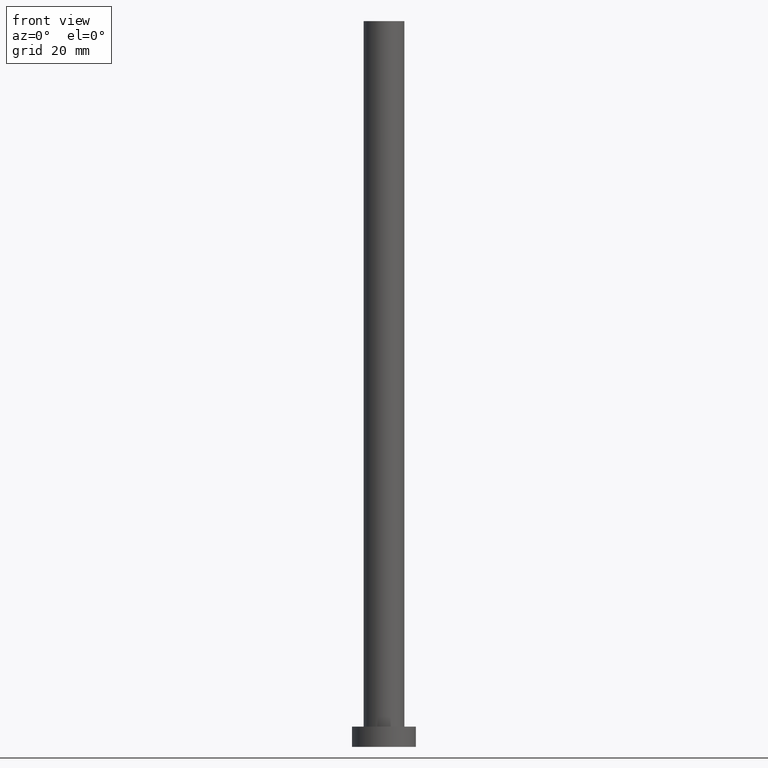
[diagram: clean part render]
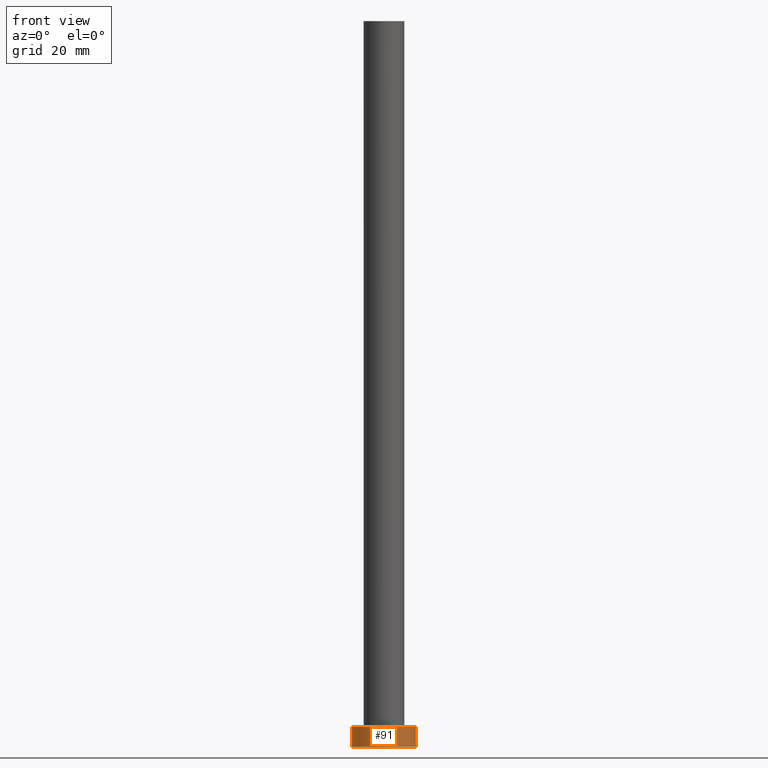
[diagram: same view with one face highlighted and labeled with its STEP entity id]
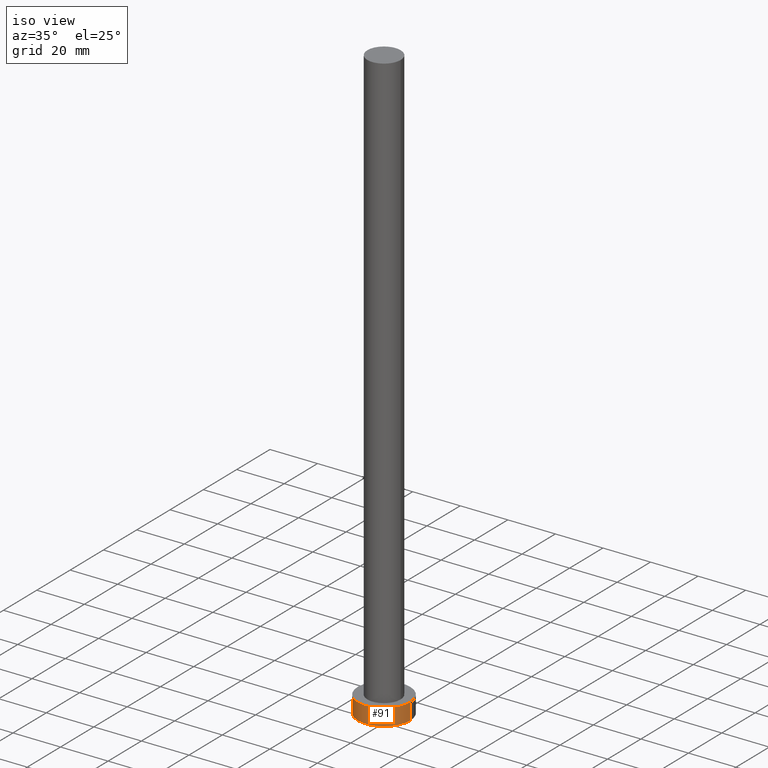
[diagram: same view with one face highlighted and labeled with its STEP entity id]
A machine part, front view. The second image highlights one B-rep face of the part: STEP entity #91.
A second angle (iso view) of the same face is appended — the face is thin or edge-on in the first view.
In plain terms, the highlighted cylindrical surface (edge-blend (fillet) strip) has radius 11 mm, axis along (-0, -0, -1).
Its self-contained STEP definition (entity closure, byte-faithful):
#3 = CARTESIAN_POINT ( 'NONE',  ( 0.000000000000000000, 0.000000000000000000, 0.000000000000000000 ) ) ;
#26 = CIRCLE ( 'NONE', #181, 11.00000000000000000 ) ;
#27 = CARTESIAN_POINT ( 'NONE',  ( 11.00000000000000000, 1.347111479062088405E-15, 0.000000000000000000 ) ) ;
#29 = VERTEX_POINT ( 'NONE', #150 ) ;
#31 = VERTEX_POINT ( 'NONE', #62 ) ;
#38 = DIRECTION ( 'NONE',  ( -0.000000000000000000, -0.000000000000000000, -1.000000000000000000 ) ) ;
#42 = DIRECTION ( 'NONE',  ( 0.000000000000000000, 0.000000000000000000, 1.000000000000000000 ) ) ;
#51 = CARTESIAN_POINT ( 'NONE',  ( 0.000000000000000000, 0.000000000000000000, 7.000000000000000000 ) ) ;
#54 = ORIENTED_EDGE ( 'NONE', *, *, #126, .T. ) ;
#60 = VERTEX_POINT ( 'NONE', #27 ) ;
#62 = CARTESIAN_POINT ( 'NONE',  ( -11.00000000000000000, 0.000000000000000000, 0.000000000000000000 ) ) ;
#69 = LINE ( 'NONE', #224, #81 ) ;
#77 = ORIENTED_EDGE ( 'NONE', *, *, #133, .F. ) ;
#81 = VECTOR ( 'NONE', #38, 1000.000000000000000 ) ;
#84 = DIRECTION ( 'NONE',  ( -0.000000000000000000, -0.000000000000000000, -1.000000000000000000 ) ) ;
#89 = DIRECTION ( 'NONE',  ( 1.000000000000000000, 0.000000000000000000, 0.000000000000000000 ) ) ;
#91 = ADVANCED_FACE ( 'NONE', ( #93 ), #196, .T. ) ;
#93 = FACE_OUTER_BOUND ( 'NONE', #248, .T. ) ;
#109 = VERTEX_POINT ( 'NONE', #231 ) ;
#112 = DIRECTION ( 'NONE',  ( -1.000000000000000000, 0.000000000000000000, 0.000000000000000000 ) ) ;
#126 = EDGE_CURVE ( 'NONE', #29, #31, #175, .T. ) ;
#128 = ORIENTED_EDGE ( 'NONE', *, *, #161, .T. ) ;
#133 = EDGE_CURVE ( 'NONE', #109, #60, #69, .T. ) ;
#150 = CARTESIAN_POINT ( 'NONE',  ( -11.00000000000000000, 0.000000000000000000, 7.000000000000000000 ) ) ;
#159 = DIRECTION ( 'NONE',  ( 1.000000000000000000, 0.000000000000000000, 0.000000000000000000 ) ) ;
#161 = EDGE_CURVE ( 'NONE', #31, #60, #26, .T. ) ;
#173 = AXIS2_PLACEMENT_3D ( 'NONE', #51, #246, #89 ) ;
#175 = LINE ( 'NONE', #244, #186 ) ;
#181 = AXIS2_PLACEMENT_3D ( 'NONE', #3, #42, #159 ) ;
#186 = VECTOR ( 'NONE', #84, 1000.000000000000000 ) ;
#187 = CARTESIAN_POINT ( 'NONE',  ( 0.000000000000000000, 0.000000000000000000, 7.000000000000000000 ) ) ;
#192 = AXIS2_PLACEMENT_3D ( 'NONE', #187, #255, #112 ) ;
#196 = CYLINDRICAL_SURFACE ( 'NONE', #192, 11.00000000000000000 ) ;
#200 = CIRCLE ( 'NONE', #173, 11.00000000000000000 ) ;
#220 = EDGE_CURVE ( 'NONE', #29, #109, #200, .T. ) ;
#224 = CARTESIAN_POINT ( 'NONE',  ( 11.00000000000000000, 1.347111479062088405E-15, 7.000000000000000000 ) ) ;
#231 = CARTESIAN_POINT ( 'NONE',  ( 11.00000000000000000, 1.347111479062088405E-15, 7.000000000000000000 ) ) ;
#244 = CARTESIAN_POINT ( 'NONE',  ( -11.00000000000000000, 0.000000000000000000, 7.000000000000000000 ) ) ;
#246 = DIRECTION ( 'NONE',  ( 0.000000000000000000, 0.000000000000000000, 1.000000000000000000 ) ) ;
#248 = EDGE_LOOP ( 'NONE', ( #77, #254, #54, #128 ) ) ;
#254 = ORIENTED_EDGE ( 'NONE', *, *, #220, .F. ) ;
#255 = DIRECTION ( 'NONE',  ( -0.000000000000000000, -0.000000000000000000, -1.000000000000000000 ) ) ;